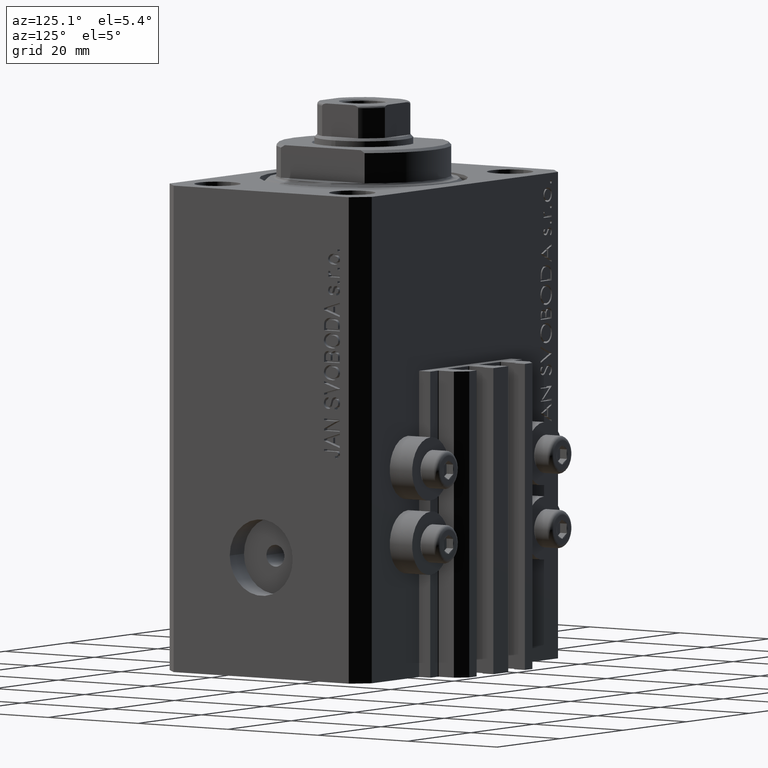
[diagram: clean part render]
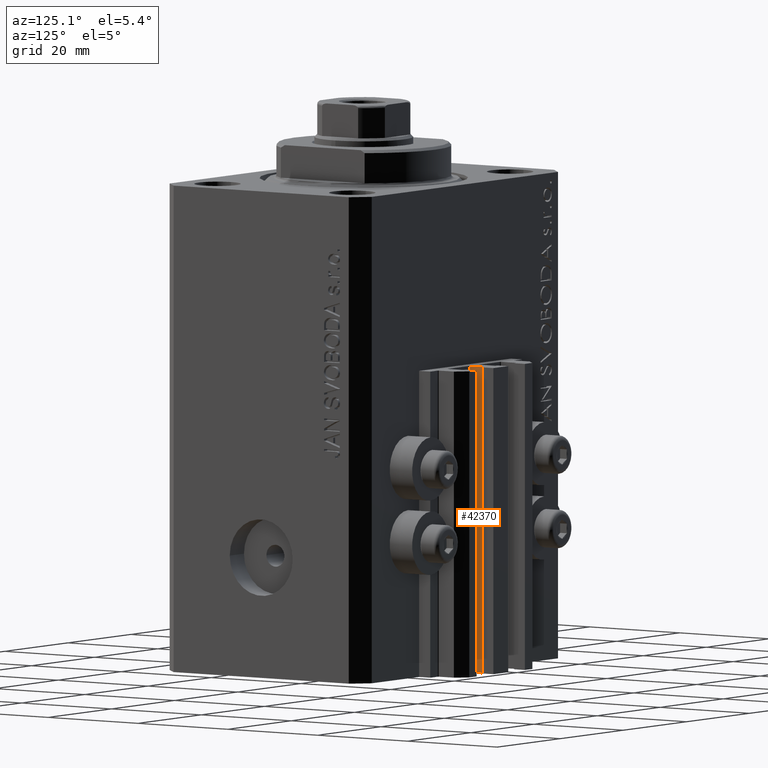
[diagram: same view with one face highlighted and labeled with its STEP entity id]
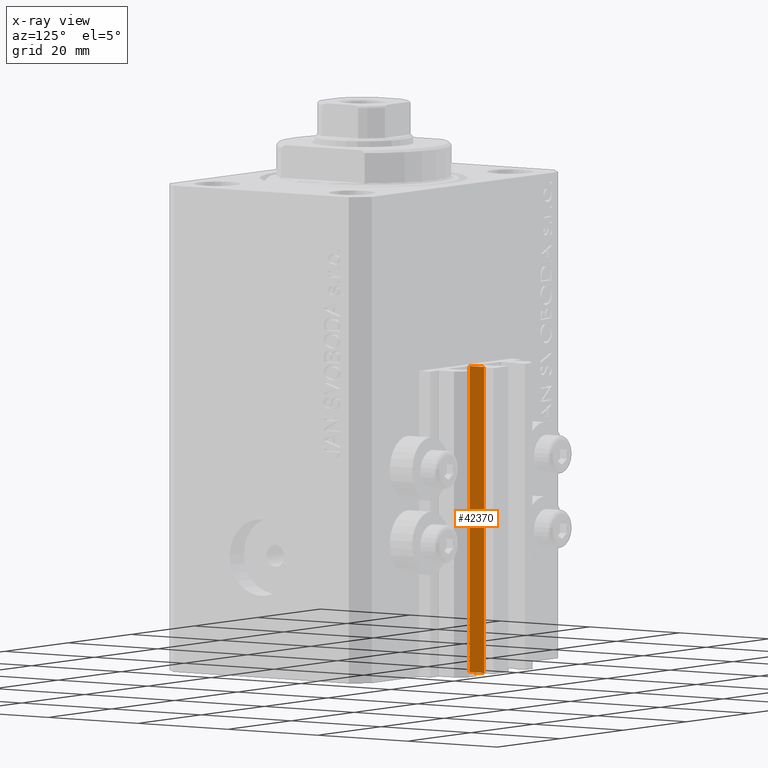
[diagram: x-ray of the same camera — body ghosted, the highlighted face saturated]
A machine part, auxiliary view. The second image highlights one B-rep face of the part: STEP entity #42370.
The next image is the same camera in x-ray: the body ghosted, the highlighted face saturated — about 0% of this face is hidden behind the body in this view.
In plain terms, the highlighted planar face has unit normal (1, 0, 0).
Its self-contained STEP definition (entity closure, byte-faithful):
#118 = LINE ( 'NONE', #40329, #25928 ) ;
#1016 = DIRECTION ( 'NONE',  ( 0.000000000000000000, 0.000000000000000000, 1.000000000000000000 ) ) ;
#1521 = PLANE ( 'NONE',  #36781 ) ;
#2602 = CARTESIAN_POINT ( 'NONE',  ( 1.600000000000000533, 24.69999999999949480, -89.00000000000000000 ) ) ;
#4338 = ORIENTED_EDGE ( 'NONE', *, *, #7209, .T. ) ;
#4895 = ORIENTED_EDGE ( 'NONE', *, *, #5212, .F. ) ;
#5044 = LINE ( 'NONE', #15809, #24527 ) ;
#5212 = EDGE_CURVE ( 'NONE', #9266, #10665, #7829, .T. ) ;
#5508 = DIRECTION ( 'NONE',  ( 0.000000000000000000, 0.000000000000000000, 1.000000000000000000 ) ) ;
#7209 = EDGE_CURVE ( 'NONE', #32684, #14516, #23444, .T. ) ;
#7829 = LINE ( 'NONE', #43734, #30891 ) ;
#8226 = CARTESIAN_POINT ( 'NONE',  ( 1.600000000000000533, 27.89999999999950120, -89.00000000000000000 ) ) ;
#9266 = VERTEX_POINT ( 'NONE', #34662 ) ;
#10665 = VERTEX_POINT ( 'NONE', #23488 ) ;
#14516 = VERTEX_POINT ( 'NONE', #8226 ) ;
#15172 = DIRECTION ( 'NONE',  ( 1.000000000000000000, 0.000000000000000000, 0.000000000000000000 ) ) ;
#15809 = CARTESIAN_POINT ( 'NONE',  ( 1.600000000000000533, 27.89999999999950120, -89.00000000000000000 ) ) ;
#17515 = EDGE_LOOP ( 'NONE', ( #4895, #30030, #4338, #35023 ) ) ;
#18839 = DIRECTION ( 'NONE',  ( 0.000000000000000000, 1.000000000000000000, 0.000000000000000000 ) ) ;
#22589 = FACE_OUTER_BOUND ( 'NONE', #17515, .T. ) ;
#23299 = DIRECTION ( 'NONE',  ( 0.000000000000000000, 0.000000000000000000, -1.000000000000000000 ) ) ;
#23444 = LINE ( 'NONE', #2602, #39372 ) ;
#23488 = CARTESIAN_POINT ( 'NONE',  ( 1.600000000000000533, 27.89999999999950120, -33.00000000000000000 ) ) ;
#24527 = VECTOR ( 'NONE', #5508, 1000.000000000000000 ) ;
#25928 = VECTOR ( 'NONE', #1016, 1000.000000000000000 ) ;
#25945 = CARTESIAN_POINT ( 'NONE',  ( 1.600000000000000533, 24.69999999999949480, -89.00000000000000000 ) ) ;
#30030 = ORIENTED_EDGE ( 'NONE', *, *, #35991, .F. ) ;
#30891 = VECTOR ( 'NONE', #18839, 1000.000000000000000 ) ;
#31789 = DIRECTION ( 'NONE',  ( 0.000000000000000000, 1.000000000000000000, 0.000000000000000000 ) ) ;
#32684 = VERTEX_POINT ( 'NONE', #35940 ) ;
#34662 = CARTESIAN_POINT ( 'NONE',  ( 1.599999999999999645, 24.69999999999949480, -33.00000000000000000 ) ) ;
#35023 = ORIENTED_EDGE ( 'NONE', *, *, #40645, .T. ) ;
#35940 = CARTESIAN_POINT ( 'NONE',  ( 1.599999999999999645, 24.69999999999949480, -89.00000000000000000 ) ) ;
#35991 = EDGE_CURVE ( 'NONE', #32684, #9266, #118, .T. ) ;
#36781 = AXIS2_PLACEMENT_3D ( 'NONE', #25945, #15172, #23299 ) ;
#39372 = VECTOR ( 'NONE', #31789, 1000.000000000000000 ) ;
#40329 = CARTESIAN_POINT ( 'NONE',  ( 1.599999999999999645, 24.69999999999949480, -89.00000000000000000 ) ) ;
#40645 = EDGE_CURVE ( 'NONE', #14516, #10665, #5044, .T. ) ;
#42370 = ADVANCED_FACE ( 'NONE', ( #22589 ), #1521, .T. ) ;
#43734 = CARTESIAN_POINT ( 'NONE',  ( 1.600000000000000533, 24.69999999999949480, -33.00000000000000000 ) ) ;